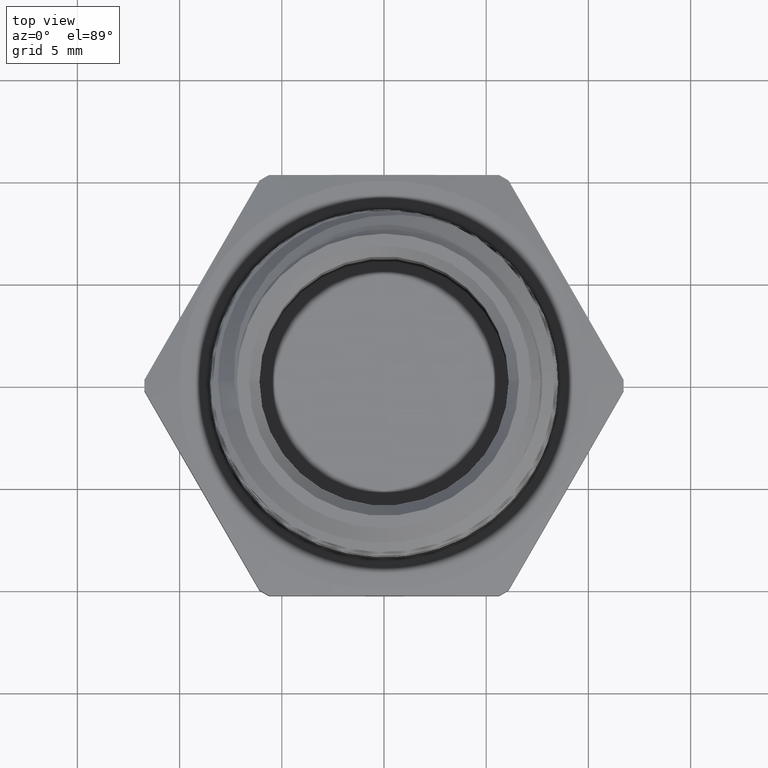
[diagram: clean part render]
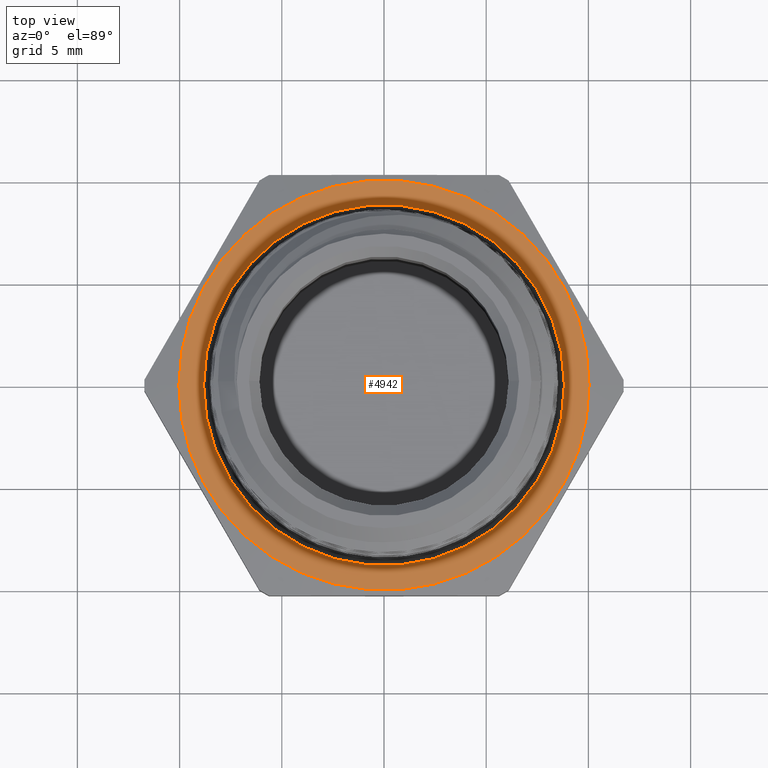
[diagram: same view with one face highlighted and labeled with its STEP entity id]
A machine part, top view. The second image highlights one B-rep face of the part: STEP entity #4942.
In plain terms, the highlighted planar face has unit normal (-0, 0, 1).
Its self-contained STEP definition (entity closure, byte-faithful):
#298 = DIRECTION ( 'NONE',  ( -0.0000000000000000000, 0.0000000000000000000, 1.000000000000000000 ) ) ;
#299 = CARTESIAN_POINT ( 'NONE',  ( -0.2338268590217983900, -0.4049999999999999700, 0.1200000000000000000 ) ) ;
#301 = PLANE ( 'NONE',  #2595 ) ;
#303 = DIRECTION ( 'NONE',  ( 1.000000000000000000, 0.0000000000000000000, 0.0000000000000000000 ) ) ;
#384 = CIRCLE ( 'NONE', #969, 0.3950000000000000200 ) ;
#473 = CIRCLE ( 'NONE', #993, 0.3475000000000000300 ) ;
#474 = CIRCLE ( 'NONE', #994, 0.3950000000000000200 ) ;
#557 = FACE_OUTER_BOUND ( 'NONE', #1157, .T. ) ;
#558 = FACE_BOUND ( 'NONE', #1129, .T. ) ;
#667 = VERTEX_POINT ( 'NONE', #5230 ) ;
#711 = VERTEX_POINT ( 'NONE', #5170 ) ;
#765 = VERTEX_POINT ( 'NONE', #5231 ) ;
#812 = EDGE_CURVE ( 'NONE', #711, #667, #1838, .T. ) ;
#841 = EDGE_CURVE ( 'NONE', #3928, #765, #384, .T. ) ;
#924 = EDGE_CURVE ( 'NONE', #667, #711, #473, .T. ) ;
#925 = EDGE_CURVE ( 'NONE', #765, #3928, #474, .T. ) ;
#960 = AXIS2_PLACEMENT_3D ( 'NONE', #4739, #4738, #4737 ) ;
#969 = AXIS2_PLACEMENT_3D ( 'NONE', #3493, #3494, #3495 ) ;
#993 = AXIS2_PLACEMENT_3D ( 'NONE', #4575, #4576, #4577 ) ;
#994 = AXIS2_PLACEMENT_3D ( 'NONE', #4580, #4581, #4582 ) ;
#1129 = EDGE_LOOP ( 'NONE', ( #1886, #1885 ) ) ;
#1157 = EDGE_LOOP ( 'NONE', ( #1888, #1887 ) ) ;
#1775 = CARTESIAN_POINT ( 'NONE',  ( -0.3950000000000000200, 0.0000000000000000000, 0.1200000000000000000 ) ) ;
#1838 = CIRCLE ( 'NONE', #960, 0.3475000000000000300 ) ;
#1885 = ORIENTED_EDGE ( 'NONE', *, *, #924, .T. ) ;
#1886 = ORIENTED_EDGE ( 'NONE', *, *, #812, .T. ) ;
#1887 = ORIENTED_EDGE ( 'NONE', *, *, #925, .F. ) ;
#1888 = ORIENTED_EDGE ( 'NONE', *, *, #841, .F. ) ;
#2595 = AXIS2_PLACEMENT_3D ( 'NONE', #299, #298, #303 ) ;
#3493 = CARTESIAN_POINT ( 'NONE',  ( 0.0000000000000000000, 0.0000000000000000000, 0.1200000000000000000 ) ) ;
#3494 = DIRECTION ( 'NONE',  ( -0.0000000000000000000, -0.0000000000000000000, -1.000000000000000000 ) ) ;
#3495 = DIRECTION ( 'NONE',  ( -1.000000000000000000, 0.0000000000000000000, 0.0000000000000000000 ) ) ;
#3928 = VERTEX_POINT ( 'NONE', #1775 ) ;
#4575 = CARTESIAN_POINT ( 'NONE',  ( 0.0000000000000000000, 0.0000000000000000000, 0.1200000000000000000 ) ) ;
#4576 = DIRECTION ( 'NONE',  ( 0.0000000000000000000, -0.0000000000000000000, -1.000000000000000000 ) ) ;
#4577 = DIRECTION ( 'NONE',  ( 1.000000000000000000, 0.0000000000000000000, 0.0000000000000000000 ) ) ;
#4580 = CARTESIAN_POINT ( 'NONE',  ( 0.0000000000000000000, 0.0000000000000000000, 0.1200000000000000000 ) ) ;
#4581 = DIRECTION ( 'NONE',  ( -0.0000000000000000000, -0.0000000000000000000, -1.000000000000000000 ) ) ;
#4582 = DIRECTION ( 'NONE',  ( -1.000000000000000000, 0.0000000000000000000, 0.0000000000000000000 ) ) ;
#4737 = DIRECTION ( 'NONE',  ( 1.000000000000000000, 0.0000000000000000000, 0.0000000000000000000 ) ) ;
#4738 = DIRECTION ( 'NONE',  ( 0.0000000000000000000, -0.0000000000000000000, -1.000000000000000000 ) ) ;
#4739 = CARTESIAN_POINT ( 'NONE',  ( 0.0000000000000000000, 0.0000000000000000000, 0.1200000000000000000 ) ) ;
#4942 = ADVANCED_FACE ( 'NONE', ( #557, #558 ), #301, .T. ) ;
#5170 = CARTESIAN_POINT ( 'NONE',  ( 0.3475000000000000300, 0.0000000000000000000, 0.1199999999999999800 ) ) ;
#5230 = CARTESIAN_POINT ( 'NONE',  ( -0.3475000000000000300, 4.255647627037053400E-017, 0.1199999999999999800 ) ) ;
#5231 = CARTESIAN_POINT ( 'NONE',  ( 0.3950000000000000200, 4.837354856632045600E-017, 0.1200000000000000000 ) ) ;